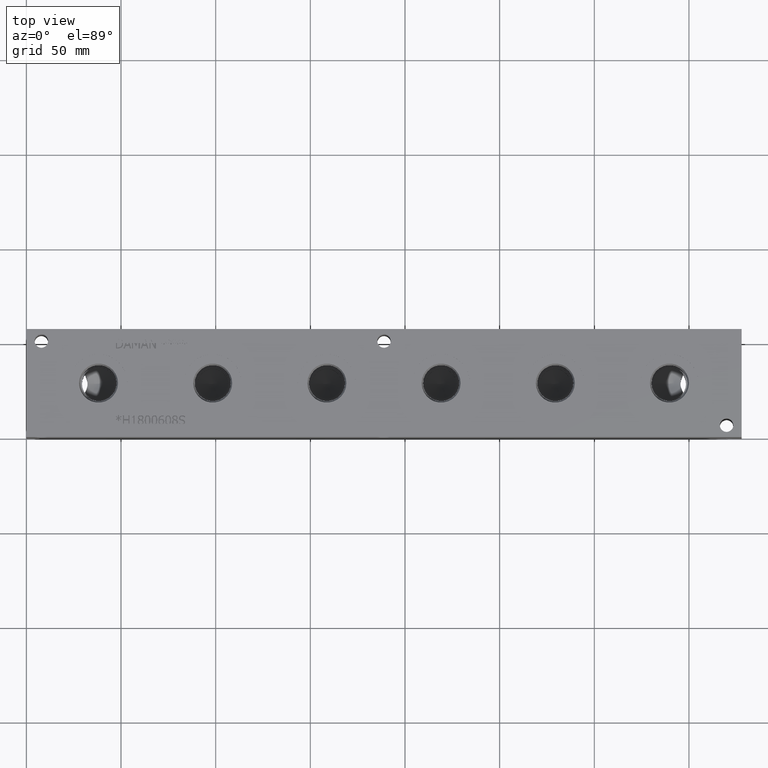
[diagram: clean part render]
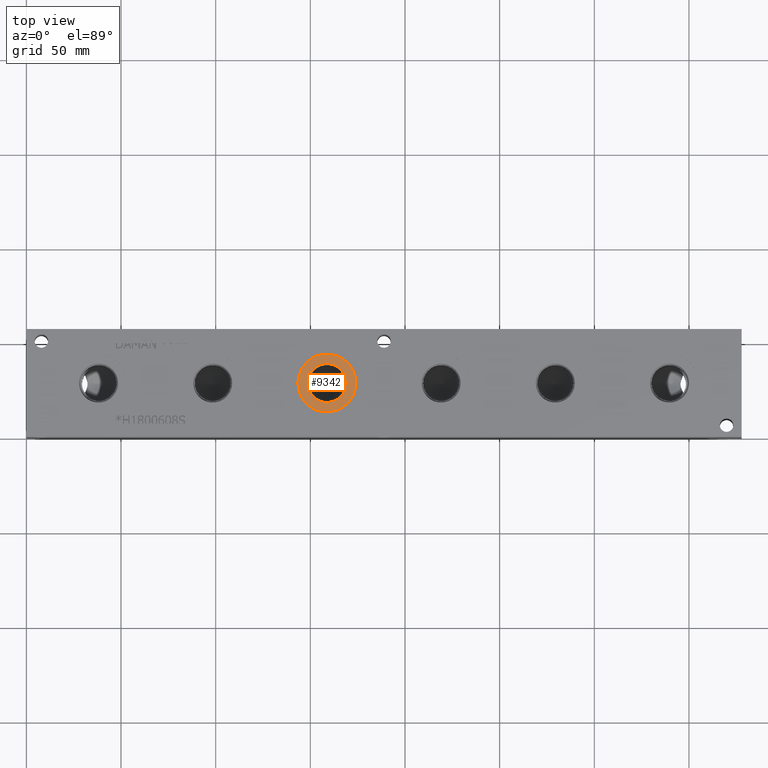
[diagram: same view with one face highlighted and labeled with its STEP entity id]
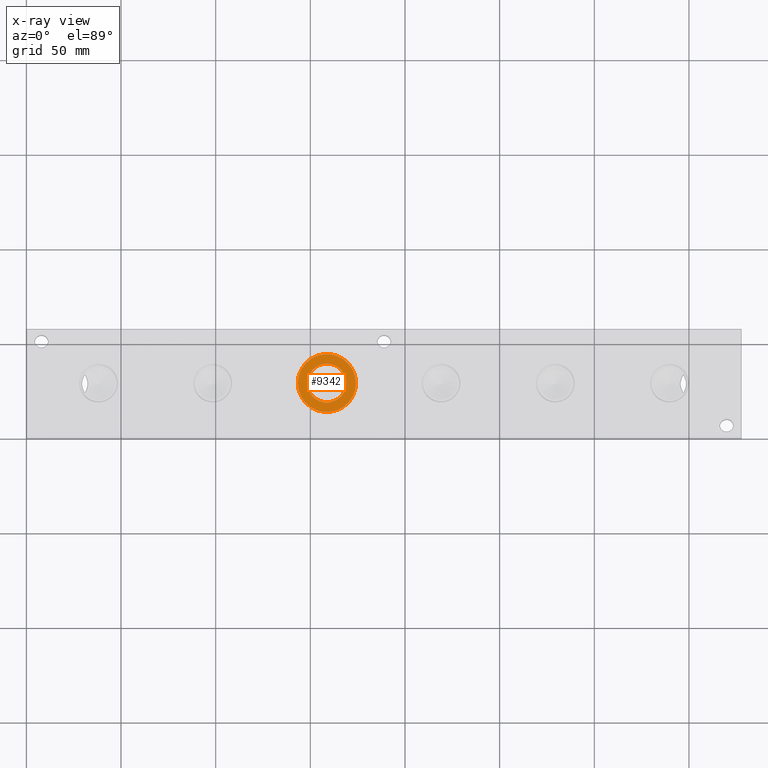
[diagram: x-ray of the same camera — body ghosted, the highlighted face saturated]
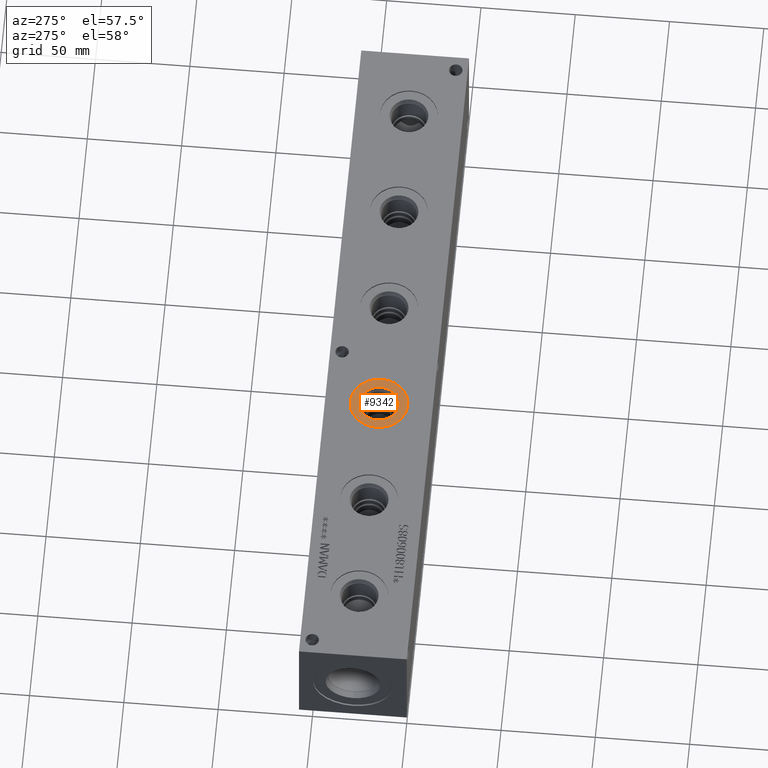
[diagram: same view with one face highlighted and labeled with its STEP entity id]
A machine part, top view. The second image highlights one B-rep face of the part: STEP entity #9342.
The next image is the same camera in x-ray: the body ghosted, the highlighted face saturated — about 0% of this face is hidden behind the body in this view.
A second angle (auxiliary view) of the same face is appended — the face is thin or edge-on in the first view.
In plain terms, the highlighted planar face has unit normal (0, 0, -1).
Its self-contained STEP definition (entity closure, byte-faithful):
#367=CIRCLE('',#9946,15.3162);
#368=CIRCLE('',#9947,15.3162);
#369=CIRCLE('',#9949,10.2997);
#370=CIRCLE('',#9950,10.2997);
#488=FACE_BOUND('',#1730,.T.);
#736=PLANE('',#9948);
#1186=FACE_OUTER_BOUND('',#1729,.T.);
#1729=EDGE_LOOP('',(#8218,#8219));
#1730=EDGE_LOOP('',(#8220,#8221));
#4442=VERTEX_POINT('',#16269);
#4443=VERTEX_POINT('',#16271);
#4444=VERTEX_POINT('',#16275);
#4445=VERTEX_POINT('',#16276);
#5730=EDGE_CURVE('',#4442,#4443,#367,.T.);
#5731=EDGE_CURVE('',#4443,#4442,#368,.T.);
#5732=EDGE_CURVE('',#4444,#4445,#369,.T.);
#5733=EDGE_CURVE('',#4445,#4444,#370,.T.);
#8218=ORIENTED_EDGE('',*,*,#5731,.F.);
#8219=ORIENTED_EDGE('',*,*,#5730,.F.);
#8220=ORIENTED_EDGE('',*,*,#5732,.T.);
#8221=ORIENTED_EDGE('',*,*,#5733,.T.);
#9342=ADVANCED_FACE('',(#1186,#488),#736,.F.);
#9946=AXIS2_PLACEMENT_3D('',#16272,#11877,#11878);
#9947=AXIS2_PLACEMENT_3D('',#16273,#11879,#11880);
#9948=AXIS2_PLACEMENT_3D('',#16274,#11881,#11882);
#9949=AXIS2_PLACEMENT_3D('',#16277,#11883,#11884);
#9950=AXIS2_PLACEMENT_3D('',#16278,#11885,#11886);
#11877=DIRECTION('center_axis',(0.,0.,-1.));
#11878=DIRECTION('ref_axis',(1.,0.,0.));
#11879=DIRECTION('center_axis',(0.,0.,-1.));
#11880=DIRECTION('ref_axis',(1.,0.,0.));
#11881=DIRECTION('center_axis',(0.,0.,-1.));
#11882=DIRECTION('ref_axis',(-1.,0.,0.));
#11883=DIRECTION('center_axis',(0.,0.,-1.));
#11884=DIRECTION('ref_axis',(1.,0.,0.));
#11885=DIRECTION('center_axis',(0.,0.,-1.));
#11886=DIRECTION('ref_axis',(1.,0.,0.));
#16269=CARTESIAN_POINT('',(143.4338,28.575,56.3626));
#16271=CARTESIAN_POINT('',(174.0662,28.575,56.3626));
#16272=CARTESIAN_POINT('Origin',(158.75,28.575,56.3626));
#16273=CARTESIAN_POINT('Origin',(158.75,28.575,56.3626));
#16274=CARTESIAN_POINT('Origin',(169.0497,28.575,56.3626));
#16275=CARTESIAN_POINT('',(169.0497,28.575,56.3626));
#16276=CARTESIAN_POINT('',(148.4503,28.575,56.3626));
#16277=CARTESIAN_POINT('Origin',(158.75,28.575,56.3626));
#16278=CARTESIAN_POINT('Origin',(158.75,28.575,56.3626));